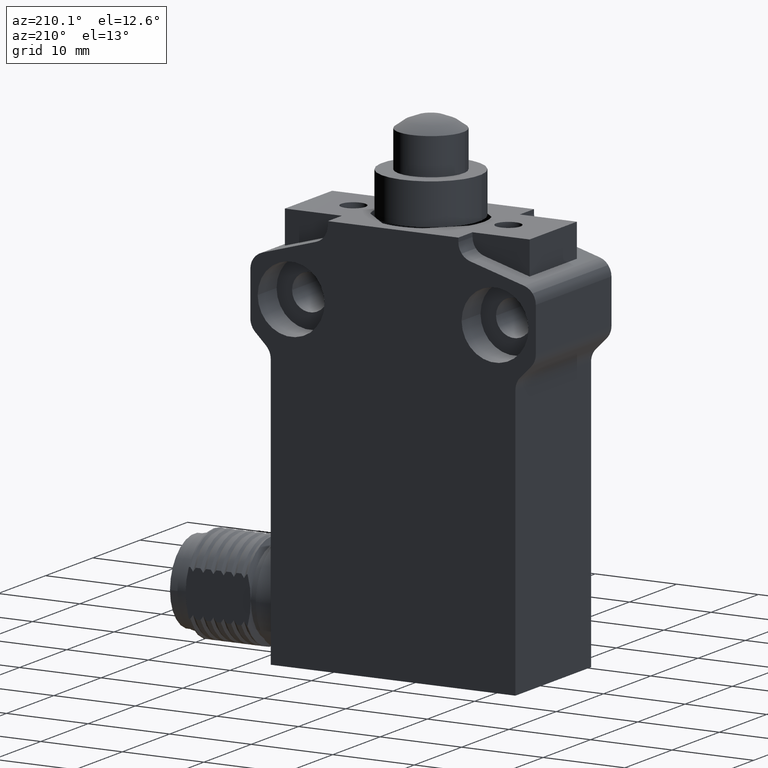
[diagram: clean part render]
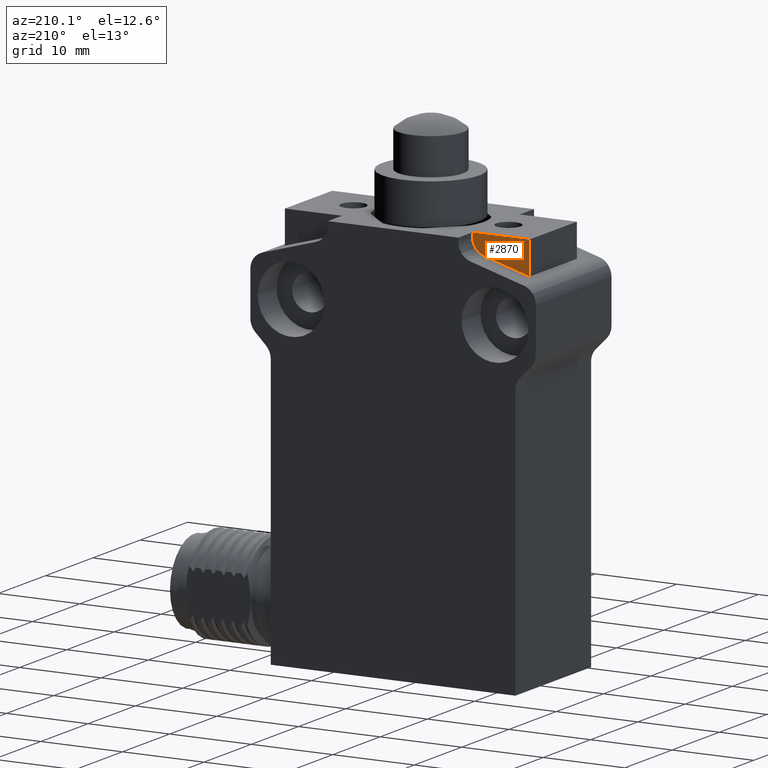
[diagram: same view with one face highlighted and labeled with its STEP entity id]
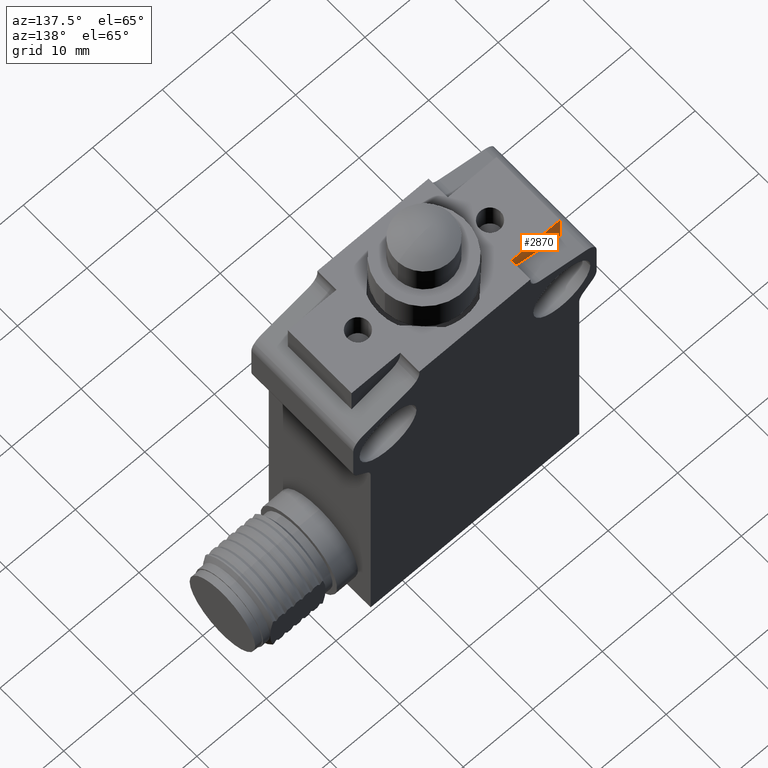
[diagram: same view with one face highlighted and labeled with its STEP entity id]
A machine part, auxiliary view. The second image highlights one B-rep face of the part: STEP entity #2870.
A second angle (auxiliary view) of the same face is appended — the face is thin or edge-on in the first view.
In plain terms, the highlighted planar face has unit normal (0, 1, 0).
Its self-contained STEP definition (entity closure, byte-faithful):
#345 = EDGE_LOOP ( 'NONE', ( #3753, #3259, #5617, #7983, #2887, #5492 ) ) ;
#423 = AXIS2_PLACEMENT_3D ( 'NONE', #4713, #7848, #2939 ) ;
#555 = VERTEX_POINT ( 'NONE', #5991 ) ;
#645 = AXIS2_PLACEMENT_3D ( 'NONE', #3658, #4308, #4369 ) ;
#655 = VERTEX_POINT ( 'NONE', #6148 ) ;
#1074 = CIRCLE ( 'NONE', #645, 0.07874015748031494566 ) ;
#1162 = EDGE_CURVE ( 'NONE', #4353, #555, #6152, .T. ) ;
#1801 = CARTESIAN_POINT ( 'NONE',  ( -0.3307564631041991499, -0.1181102362204724532, 0.2874624004817612488 ) ) ;
#1875 = VERTEX_POINT ( 'NONE', #3129 ) ;
#1921 = CARTESIAN_POINT ( 'NONE',  ( -0.5905511811023621549, -0.1181102362204724532, 0.1958143389970992410 ) ) ;
#2003 = LINE ( 'NONE', #6916, #5148 ) ;
#2217 = CARTESIAN_POINT ( 'NONE',  ( -0.5905511811023621549, -0.1181102362204724532, 0.3543307086614173040 ) ) ;
#2870 = ADVANCED_FACE ( 'NONE', ( #6606 ), #5990, .T. ) ;
#2887 = ORIENTED_EDGE ( 'NONE', *, *, #5408, .F. ) ;
#2939 = DIRECTION ( 'NONE',  ( 0.0000000000000000000, 0.0000000000000000000, 1.000000000000000000 ) ) ;
#3129 = CARTESIAN_POINT ( 'NONE',  ( -0.3718064506660582746, -0.1181102362204724532, 0.2591351820181346799 ) ) ;
#3190 = DIRECTION ( 'NONE',  ( 0.0000000000000000000, 1.000000000000000000, 0.0000000000000000000 ) ) ;
#3198 = CARTESIAN_POINT ( 'NONE',  ( -0.3149606299212598381, -0.1181102362204724532, 0.3543307086614173040 ) ) ;
#3259 = ORIENTED_EDGE ( 'NONE', *, *, #3503, .T. ) ;
#3503 = EDGE_CURVE ( 'NONE', #4519, #1875, #6452, .T. ) ;
#3658 = CARTESIAN_POINT ( 'NONE',  ( -0.3937007874015748254, -0.1181102362204724532, 0.3347701634681000127 ) ) ;
#3669 = DIRECTION ( 'NONE',  ( 0.0000000000000000000, 0.0000000000000000000, -1.000000000000000000 ) ) ;
#3753 = ORIENTED_EDGE ( 'NONE', *, *, #4133, .T. ) ;
#3773 = CARTESIAN_POINT ( 'NONE',  ( -0.3149606299212598381, -0.1181102362204724532, 0.3347701634681000127 ) ) ;
#4133 = EDGE_CURVE ( 'NONE', #7142, #4519, #1074, .T. ) ;
#4308 = DIRECTION ( 'NONE',  ( 0.0000000000000000000, 1.000000000000000000, 0.0000000000000000000 ) ) ;
#4353 = VERTEX_POINT ( 'NONE', #2217 ) ;
#4369 = DIRECTION ( 'NONE',  ( 0.7993929185766708301, 0.0000000000000000000, -0.6008085899265023233 ) ) ;
#4506 = VECTOR ( 'NONE', #3669, 39.37007874015748143 ) ;
#4519 = VERTEX_POINT ( 'NONE', #1801 ) ;
#4713 = CARTESIAN_POINT ( 'NONE',  ( -0.4527559055118110520, -0.1181102362204724532, 0.3543307086614173040 ) ) ;
#5037 = DIRECTION ( 'NONE',  ( 0.9605642644145613307, 0.0000000000000000000, 0.2780580765410575750 ) ) ;
#5148 = VECTOR ( 'NONE', #7543, 39.37007874015748143 ) ;
#5408 = EDGE_CURVE ( 'NONE', #655, #4353, #7259, .T. ) ;
#5492 = ORIENTED_EDGE ( 'NONE', *, *, #7749, .F. ) ;
#5617 = ORIENTED_EDGE ( 'NONE', *, *, #6364, .F. ) ;
#5990 = PLANE ( 'NONE',  #423 ) ;
#5991 = CARTESIAN_POINT ( 'NONE',  ( -0.5905511811023621549, -0.1181102362204724532, 0.1958143389970992410 ) ) ;
#6099 = VECTOR ( 'NONE', #6381, 39.37007874015748143 ) ;
#6148 = CARTESIAN_POINT ( 'NONE',  ( -0.3149606299212598381, -0.1181102362204724532, 0.3543307086614173040 ) ) ;
#6152 = LINE ( 'NONE', #7312, #4506 ) ;
#6219 = CARTESIAN_POINT ( 'NONE',  ( -0.3937007874015748254, -0.1181102362204724532, 0.3347701634681000127 ) ) ;
#6364 = EDGE_CURVE ( 'NONE', #555, #1875, #7978, .T. ) ;
#6381 = DIRECTION ( 'NONE',  ( -1.000000000000000000, 0.0000000000000000000, 0.0000000000000000000 ) ) ;
#6452 = CIRCLE ( 'NONE', #7798, 0.07874015748031494566 ) ;
#6606 = FACE_OUTER_BOUND ( 'NONE', #345, .T. ) ;
#6832 = DIRECTION ( 'NONE',  ( 0.7993929185766708301, 0.0000000000000000000, -0.6008085899265023233 ) ) ;
#6916 = CARTESIAN_POINT ( 'NONE',  ( -0.3149606299212598381, -0.1181102362204724532, 0.3347701634681000127 ) ) ;
#7142 = VERTEX_POINT ( 'NONE', #3773 ) ;
#7205 = VECTOR ( 'NONE', #5037, 39.37007874015748143 ) ;
#7259 = LINE ( 'NONE', #3198, #6099 ) ;
#7312 = CARTESIAN_POINT ( 'NONE',  ( -0.5905511811023621549, -0.1181102362204724532, 0.3543307086614173040 ) ) ;
#7543 = DIRECTION ( 'NONE',  ( 0.0000000000000000000, 0.0000000000000000000, 1.000000000000000000 ) ) ;
#7749 = EDGE_CURVE ( 'NONE', #7142, #655, #2003, .T. ) ;
#7798 = AXIS2_PLACEMENT_3D ( 'NONE', #6219, #3190, #6832 ) ;
#7848 = DIRECTION ( 'NONE',  ( 0.0000000000000000000, 1.000000000000000000, 0.0000000000000000000 ) ) ;
#7978 = LINE ( 'NONE', #1921, #7205 ) ;
#7983 = ORIENTED_EDGE ( 'NONE', *, *, #1162, .F. ) ;